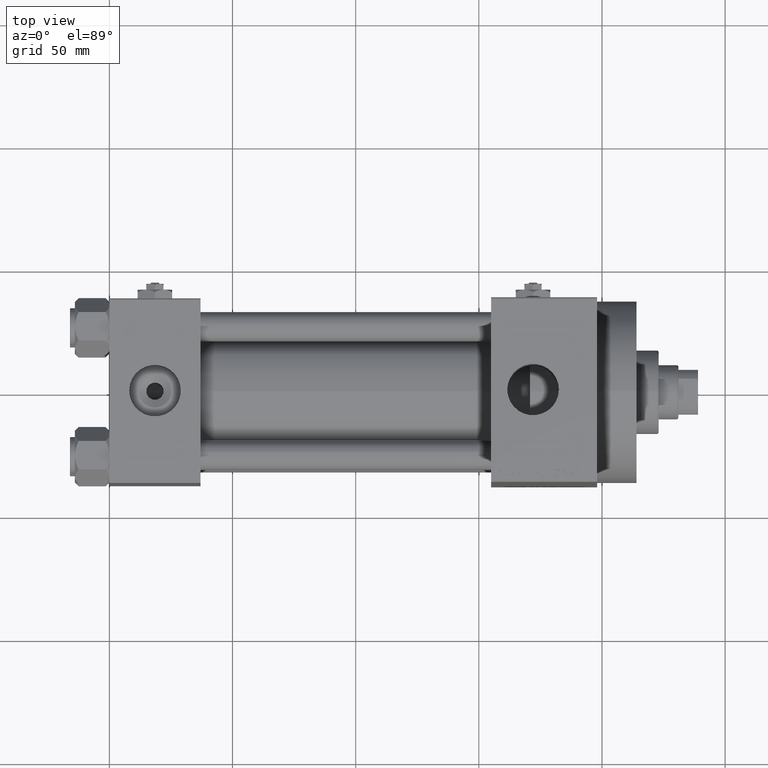
[diagram: clean part render]
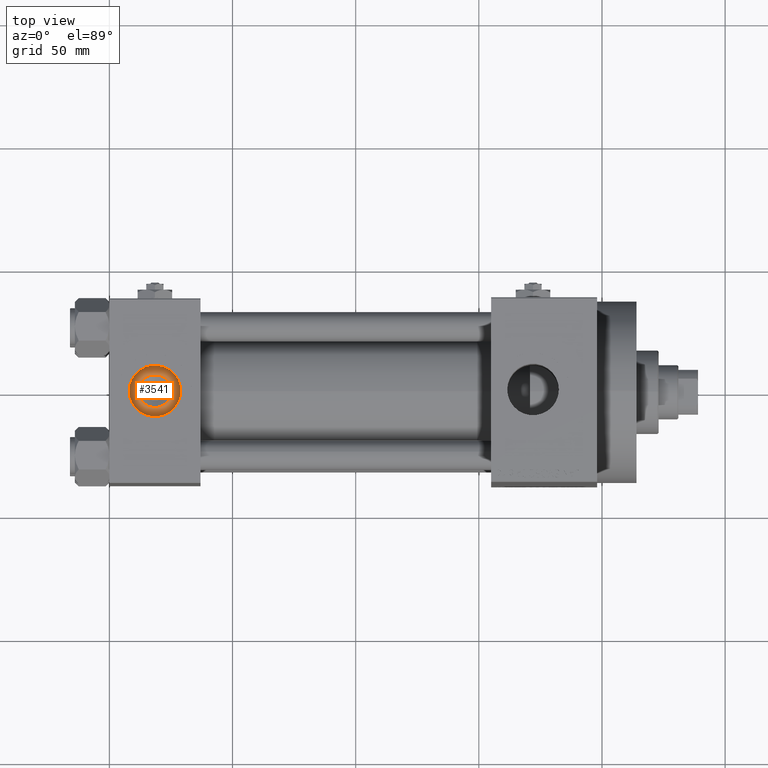
[diagram: same view with one face highlighted and labeled with its STEP entity id]
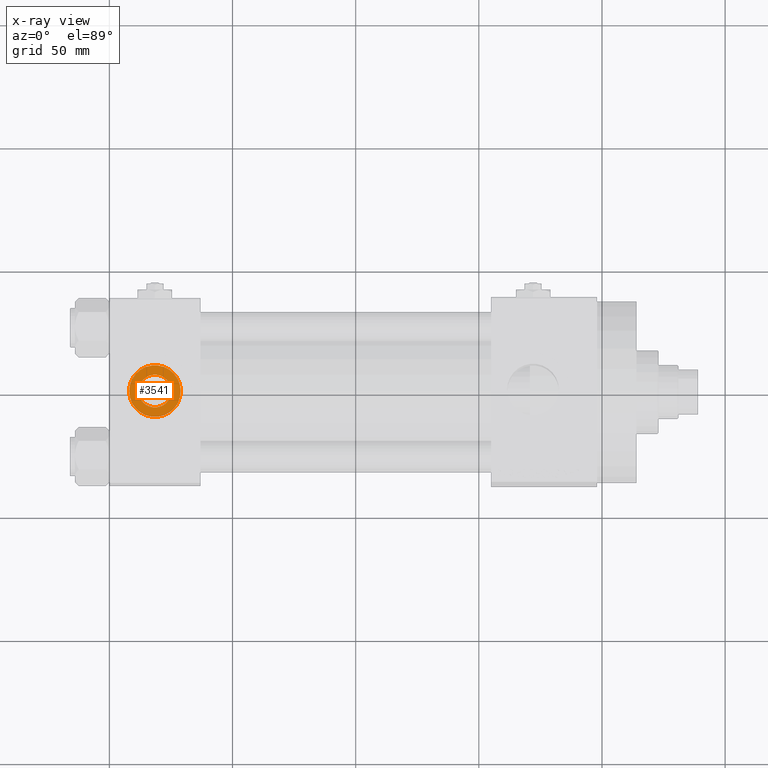
[diagram: x-ray of the same camera — body ghosted, the highlighted face saturated]
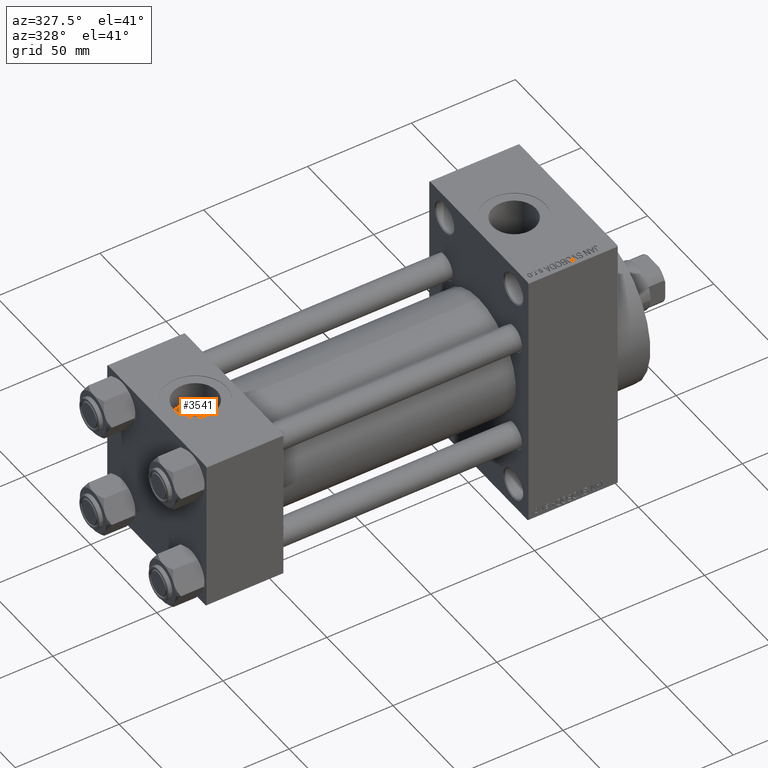
[diagram: same view with one face highlighted and labeled with its STEP entity id]
A machine part, top view. The second image highlights one B-rep face of the part: STEP entity #3541.
The next image is the same camera in x-ray: the body ghosted, the highlighted face saturated — about 0% of this face is hidden behind the body in this view.
A second angle (auxiliary view) of the same face is appended — the face is thin or edge-on in the first view.
In plain terms, the highlighted planar face has unit normal (0, 0, 1).
Its self-contained STEP definition (entity closure, byte-faithful):
#258 = DIRECTION ( 'NONE',  ( 1.000000000000000000, 0.000000000000000000, 0.000000000000000000 ) ) ;
#452 = EDGE_LOOP ( 'NONE', ( #8466, #46983 ) ) ;
#728 = CARTESIAN_POINT ( 'NONE',  ( 11.86000000000001364, -4.391004953296580751E-15, 26.69999999999999929 ) ) ;
#1566 = ORIENTED_EDGE ( 'NONE', *, *, #4917, .T. ) ;
#3378 = CARTESIAN_POINT ( 'NONE',  ( 28.98000000000000043, -5.204170427930421283E-15, 26.69999999999999929 ) ) ;
#3541 = ADVANCED_FACE ( 'NONE', ( #24431, #32172 ), #39898, .T. ) ;
#4002 = VERTEX_POINT ( 'NONE', #14077 ) ;
#4229 = DIRECTION ( 'NONE',  ( 0.000000000000000000, 0.000000000000000000, 1.000000000000000000 ) ) ;
#4917 = EDGE_CURVE ( 'NONE', #34720, #4002, #10230, .T. ) ;
#6126 = VERTEX_POINT ( 'NONE', #728 ) ;
#8466 = ORIENTED_EDGE ( 'NONE', *, *, #19002, .T. ) ;
#8503 = DIRECTION ( 'NONE',  ( -0.000000000000000000, -0.000000000000000000, -1.000000000000000000 ) ) ;
#8881 = AXIS2_PLACEMENT_3D ( 'NONE', #25407, #40636, #41374 ) ;
#9407 = CARTESIAN_POINT ( 'NONE',  ( 18.50000000000000000, -5.204170427930421283E-15, 26.69999999999999929 ) ) ;
#10230 = CIRCLE ( 'NONE', #19818, 10.48000000000000043 ) ;
#11407 = CIRCLE ( 'NONE', #47363, 6.639999999999986358 ) ;
#14077 = CARTESIAN_POINT ( 'NONE',  ( 8.019999999999999574, -3.920740582423995006E-15, 26.69999999999999929 ) ) ;
#15530 = CARTESIAN_POINT ( 'NONE',  ( 18.50000000000000000, -5.204170427930421283E-15, 26.69999999999999929 ) ) ;
#19002 = EDGE_CURVE ( 'NONE', #48507, #6126, #11407, .T. ) ;
#19427 = CARTESIAN_POINT ( 'NONE',  ( 18.50000000000000000, -5.204170427930421283E-15, 26.69999999999999929 ) ) ;
#19756 = DIRECTION ( 'NONE',  ( 1.000000000000000000, 0.000000000000000000, -0.000000000000000000 ) ) ;
#19818 = AXIS2_PLACEMENT_3D ( 'NONE', #9407, #21414, #43675 ) ;
#21414 = DIRECTION ( 'NONE',  ( 0.000000000000000000, 0.000000000000000000, 1.000000000000000000 ) ) ;
#24072 = CIRCLE ( 'NONE', #8881, 6.639999999999986358 ) ;
#24431 = FACE_BOUND ( 'NONE', #452, .T. ) ;
#25407 = CARTESIAN_POINT ( 'NONE',  ( 18.50000000000000000, -5.204170427930421283E-15, 26.69999999999999929 ) ) ;
#27176 = DIRECTION ( 'NONE',  ( 1.000000000000000000, 0.000000000000000000, 0.000000000000000000 ) ) ;
#31453 = CIRCLE ( 'NONE', #37822, 10.48000000000000043 ) ;
#32172 = FACE_OUTER_BOUND ( 'NONE', #34309, .T. ) ;
#32691 = ORIENTED_EDGE ( 'NONE', *, *, #49445, .T. ) ;
#33184 = CARTESIAN_POINT ( 'NONE',  ( 25.13999999999998636, -5.204170427930421283E-15, 26.69999999999999929 ) ) ;
#34309 = EDGE_LOOP ( 'NONE', ( #1566, #32691 ) ) ;
#34720 = VERTEX_POINT ( 'NONE', #3378 ) ;
#34753 = CARTESIAN_POINT ( 'NONE',  ( 18.50000000000000000, -5.204170427930421283E-15, 26.69999999999999929 ) ) ;
#37822 = AXIS2_PLACEMENT_3D ( 'NONE', #19427, #43398, #27176 ) ;
#39898 = PLANE ( 'NONE',  #46019 ) ;
#40636 = DIRECTION ( 'NONE',  ( -0.000000000000000000, -0.000000000000000000, -1.000000000000000000 ) ) ;
#41374 = DIRECTION ( 'NONE',  ( 1.000000000000000000, 0.000000000000000000, 0.000000000000000000 ) ) ;
#43285 = EDGE_CURVE ( 'NONE', #6126, #48507, #24072, .T. ) ;
#43398 = DIRECTION ( 'NONE',  ( 0.000000000000000000, 0.000000000000000000, 1.000000000000000000 ) ) ;
#43675 = DIRECTION ( 'NONE',  ( 1.000000000000000000, 0.000000000000000000, 0.000000000000000000 ) ) ;
#46019 = AXIS2_PLACEMENT_3D ( 'NONE', #34753, #4229, #19756 ) ;
#46983 = ORIENTED_EDGE ( 'NONE', *, *, #43285, .T. ) ;
#47363 = AXIS2_PLACEMENT_3D ( 'NONE', #15530, #8503, #258 ) ;
#48507 = VERTEX_POINT ( 'NONE', #33184 ) ;
#49445 = EDGE_CURVE ( 'NONE', #4002, #34720, #31453, .T. ) ;